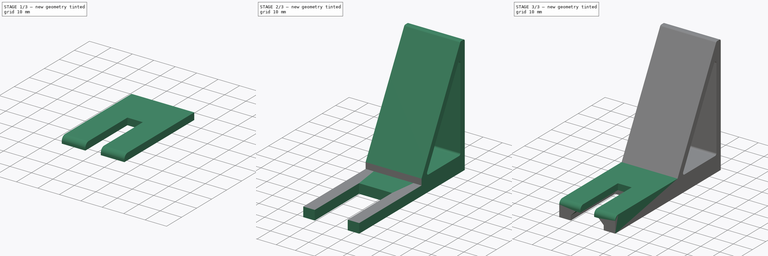
[diagram: build sequence overview — one tinted view per stage of 3, left to right]
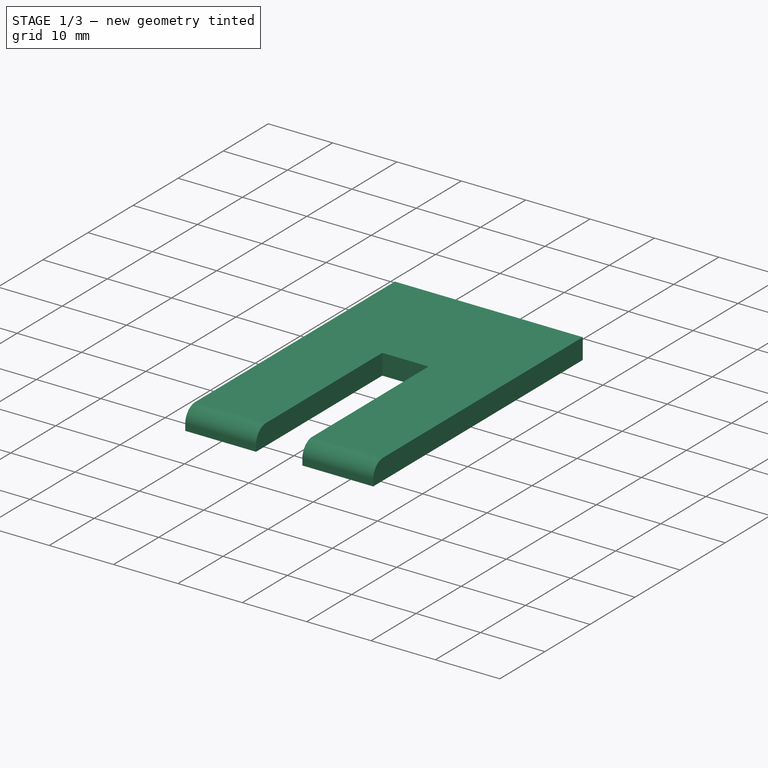
[diagram: stage 1 of 3 — iso view after this stage's code; geometry added in this stage tinted green]
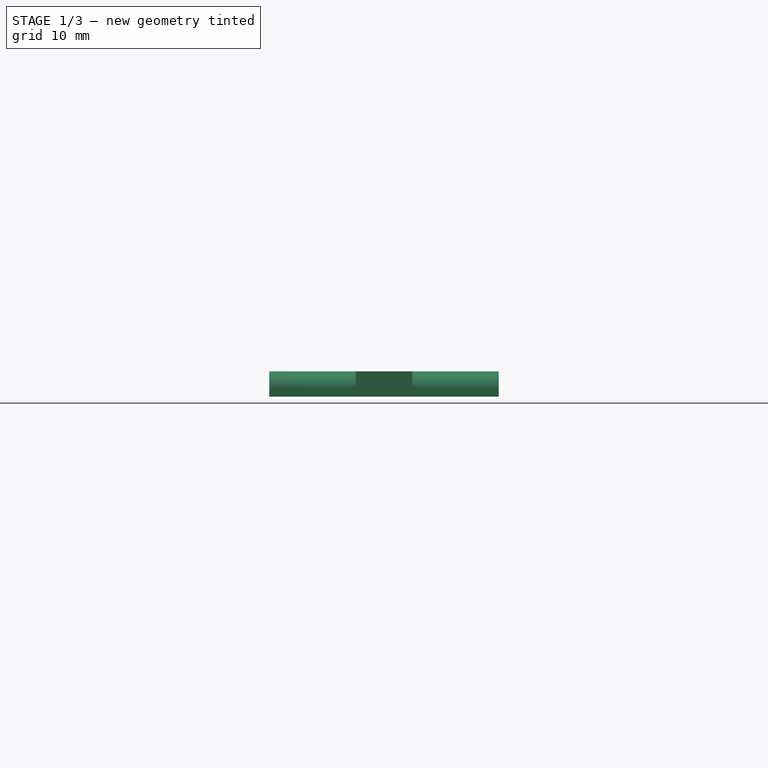
[diagram: stage 1 of 3 — front view after this stage's code; geometry added in this stage tinted green]
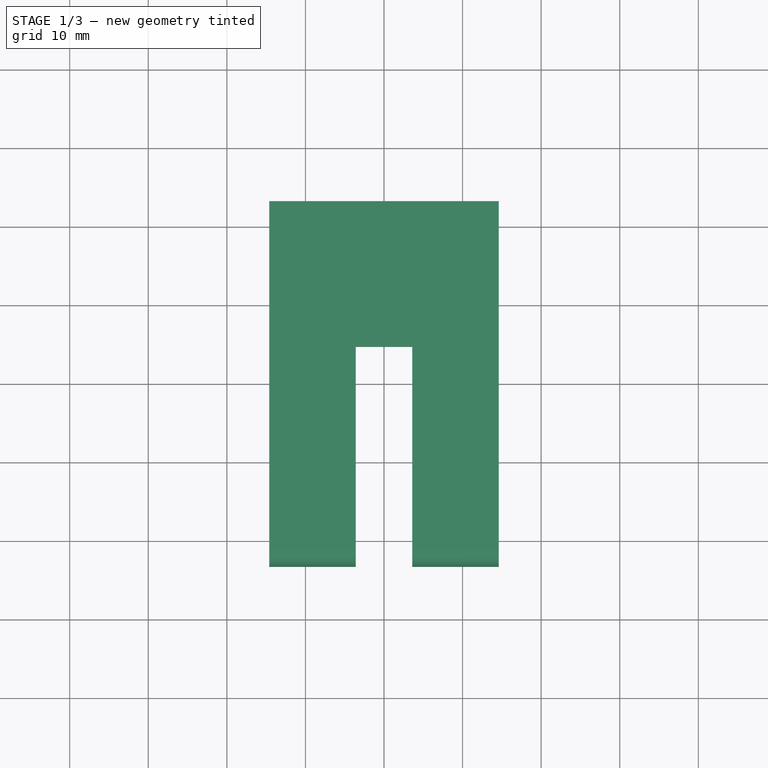
[diagram: stage 1 of 3 — top view after this stage's code; geometry added in this stage tinted green]
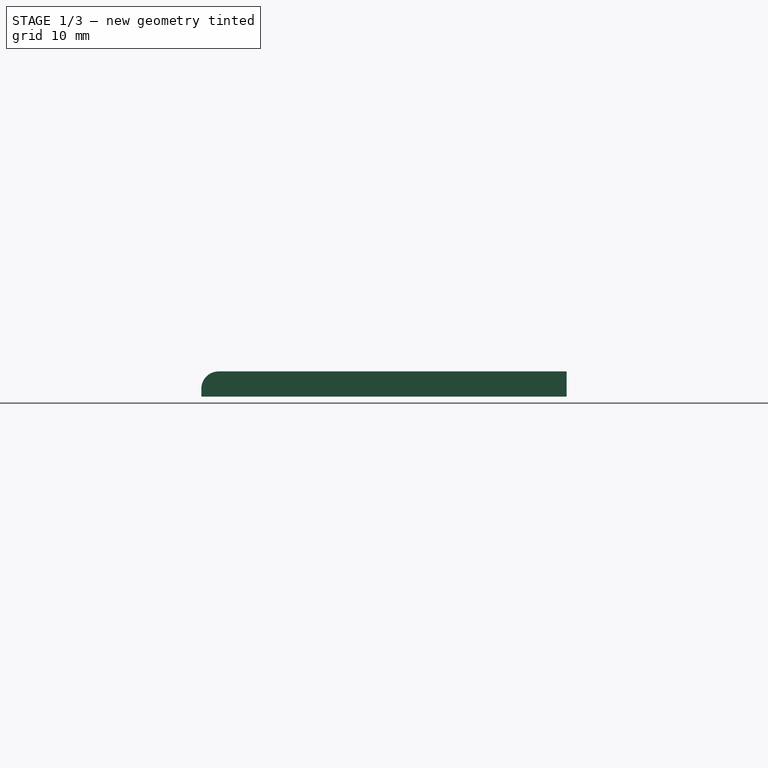
[diagram: stage 1 of 3 — right view after this stage's code; geometry added in this stage tinted green]
FCSTD DOCUMENT  (FreeCAD 1.1R40607 (Git))
Label: примерка для жерлицы
License: All rights reserved
LicenseURL: https://en.wikipedia.org/wiki/All_rights_reserved
objects: App::Point×3, Sketcher::SketchObject×3, PartDesign::Pad×3, PartDesign::Body×3, PartDesign::Fillet×2, PartDesign::SubShapeBinder×2, PartDesign::ShapeBinder×1, Part::MultiFuse×1, Part::Chamfer×1
note: 29 computed .brp shape members not serialized (recipe doc carries the construction recipe); baked Part::Feature solids carry a one-line shape summary decoded from their .brp

FEATURE [App::Point] Origin001  label="Начало координат"
  Role = Origin
FEATURE [Sketcher::SketchObject] Sketch
  ArcFitTolerance = 1e-06
  AttachmentSupport = -> [XY_Plane]
  ExternalTypes = [0]
  FullyConstrained = true
  MakeInternals = false
  MapMode = 5
  sketch-geometry (8):
    g0: LineSegment StartX=-14.6 StartY=23.25 StartZ=0 EndX=-14.6 EndY=-23.25 EndZ=0
    g1: LineSegment StartX=-14.6 StartY=-23.25 StartZ=0 EndX=-3.6 EndY=-23.25 EndZ=0
    g2: LineSegment StartX=14.6 StartY=-23.25 StartZ=0 EndX=14.6 EndY=23.25 EndZ=0
    g3: LineSegment StartX=14.6 StartY=23.25 StartZ=0 EndX=-14.6 EndY=23.25 EndZ=0
    g4: LineSegment StartX=3.6 StartY=-23.25 StartZ=0 EndX=3.6 EndY=4.75 EndZ=0
    g5: LineSegment StartX=3.6 StartY=4.75 StartZ=0 EndX=-3.6 EndY=4.75 EndZ=0
    g6: LineSegment StartX=-3.6 StartY=4.75 StartZ=0 EndX=-3.6 EndY=-23.25 EndZ=0
    g7: LineSegment StartX=3.6 StartY=-23.25 StartZ=0 EndX=14.6 EndY=-23.25 EndZ=0
  constraints (23):
    c: Coincident(g0,g1)
    c: Coincident(g7,g2)
    c: Coincident(g2,g3)
    c: Coincident(g3,g0)
    c: Vertical(g0)
    c: Vertical(g2)
    c: Horizontal(g3)
    c: Coincident(g4,g5)
    c: Coincident(g5,g6)
    c: Horizontal(g5)
    c: Vertical(g4)
    c: Vertical(g6)
    c: Coincident(g6,g1)
    c: Coincident(g4,g7)
    c: Horizontal(g7)
    c: Horizontal(g1)
    c: Equal(g1,g7)
    c: Horizontal(g4,g1)
    c: DistanceX(g5,g5) = 7.2
    c: DistanceY(g4,g4) = 28
    c: Symmetric(g0,g2,g-1)
    c: DistanceY(g4,g2) = 18.5
    c: DistanceX(g7,g7) = 11
FEATURE [PartDesign::Pad] Pad
  Direction = (0,0,1)
  Length = 3.2
  Length2 = 10
  Profile = -> Sketch
  ReferenceAxis = -> Sketch [N_Axis]
  Refine = true
  Suppressed = false
  Type = 0
FEATURE [PartDesign::Fillet] Fillet
  Base = -> Pad [Edge4,Edge16]
  BaseFeature = -> Pad
  Radius = 2.2
  Refine = true
  SupportTransform = false
  Suppressed = false
  UseAllEdges = false
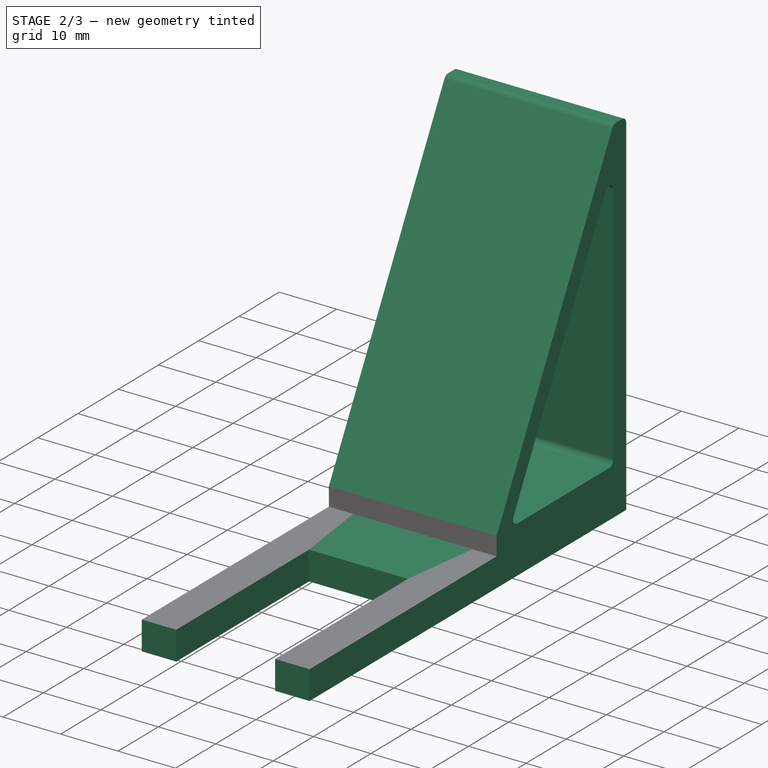
[diagram: stage 2 of 3 — iso view after this stage's code; geometry added in this stage tinted green]
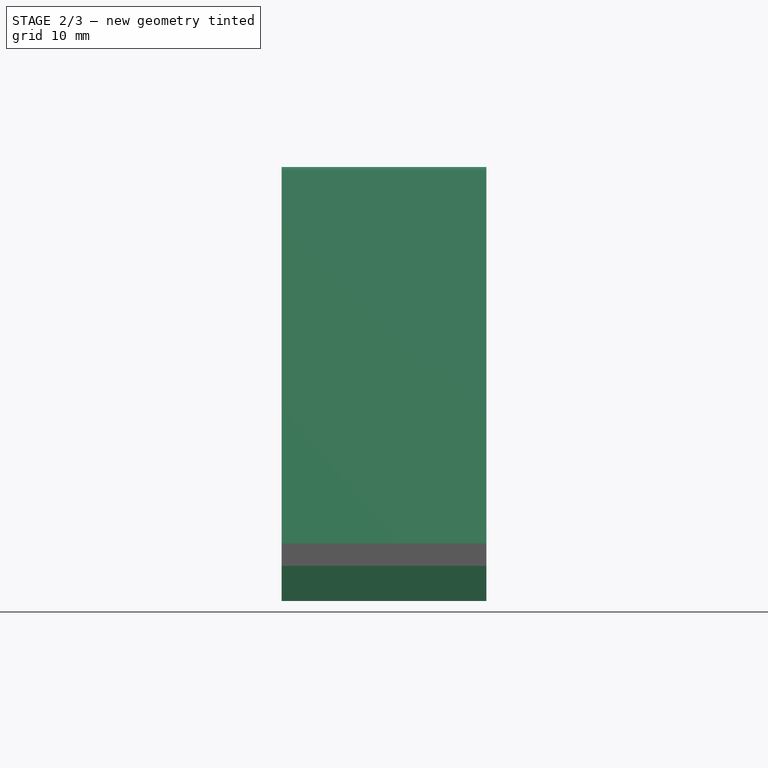
[diagram: stage 2 of 3 — front view after this stage's code; geometry added in this stage tinted green]
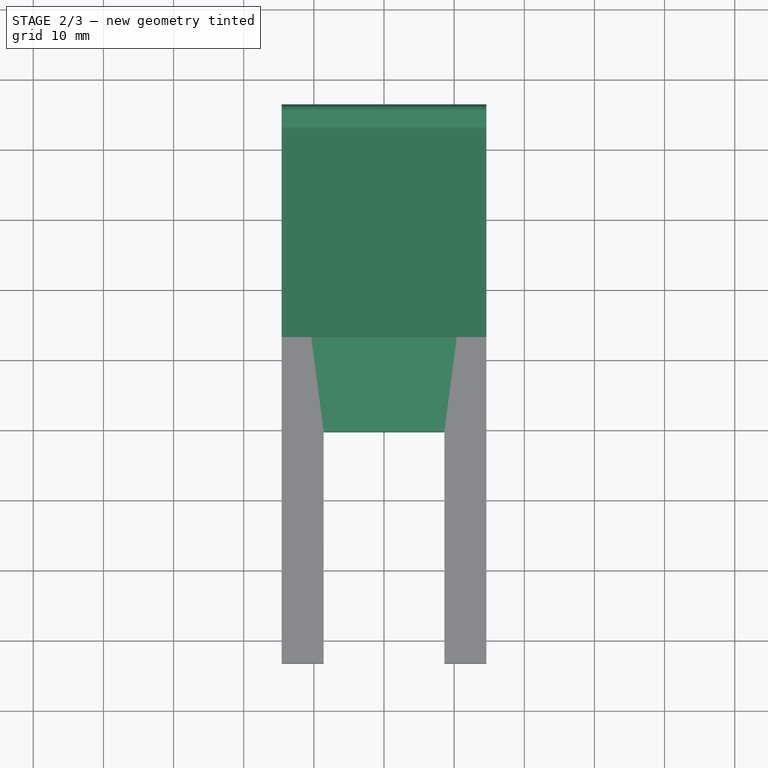
[diagram: stage 2 of 3 — top view after this stage's code; geometry added in this stage tinted green]
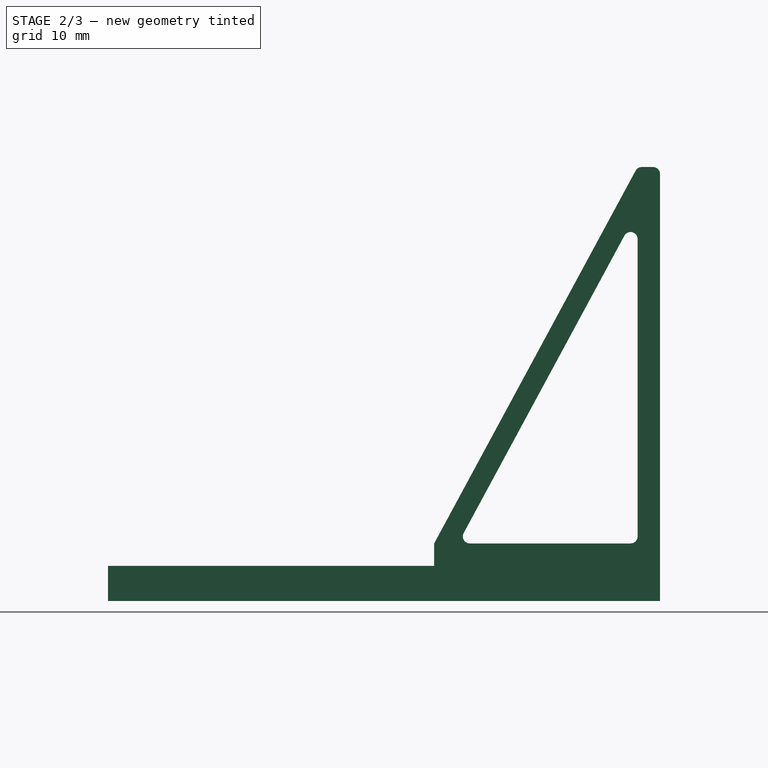
[diagram: stage 2 of 3 — right view after this stage's code; geometry added in this stage tinted green]
FEATURE [PartDesign::Body] Body  label="Тело"
  AllowCompound = false
  Group = -> [Sketch,Pad,Fillet]
  Origin = -> Origin
  Tip = -> Fillet
FEATURE [App::Point] Origin003  label="Начало координат002"
  Role = Origin
FEATURE [PartDesign::SubShapeBinder] Binder
  BindCopyOnChange = 0
  BindMode = 0
  ClaimChildren = false
  Context = -> Body001 [Binder.]
  Fuse = false
  MakeFace = true
  OffsetFill = false
  OffsetIntersection = false
  OffsetJoinType = 0
  OffsetOpenResult = false
  PartialLoad = false
  Refine = true
  Relative = true
  Support = -> [Body[Fillet.Face5]]
  _Version = 2
FEATURE [Sketcher::SketchObject] Sketch001
  ArcFitTolerance = 1e-06
  AttachmentSupport = -> [Binder]
  ExternalGeometry = -> [Binder]
  ExternalTypes = [0]
  FullyConstrained = true
  MakeInternals = false
  MapMode = 5
  Placement = pos=(14.6,0,0) rot=(0.57735,0.57735,0.57735;2.0944rad)
  sketch-geometry (7):
    g0: LineSegment StartX=26.6601 StartY=3.2 StartZ=0 EndX=52.25 EndY=3.2 EndZ=0
    g1: LineSegment StartX=52.25 StartY=3.2 StartZ=0 EndX=52.25 EndY=50.55 EndZ=0
    g2: LineSegment StartX=23.25 StartY=0 StartZ=0 EndX=55.45 EndY=0 EndZ=0
    g3: LineSegment StartX=55.45 StartY=0 StartZ=0 EndX=55.45 EndY=56.8598 EndZ=0
    g4: LineSegment StartX=52.25 StartY=56.8598 StartZ=0 EndX=55.45 EndY=56.8598 EndZ=0
    g5: LineSegment StartX=52.25 StartY=56.8598 StartZ=0 EndX=23.25 EndY=3.2 EndZ=0
    g6: LineSegment StartX=52.25 StartY=50.55 StartZ=0 EndX=26.6601 EndY=3.2 EndZ=0
  constraints (20):
    c: Coincident(g0,g1)
    c: DistanceY(g1,g1) = 47.35
    c: Coincident(g2,g-3)
    c: PointOnObject(g2,g-1)
    c: Coincident(g3,g2)
    c: Vertical(g3)
    c: Coincident(g4,g3)
    c: Horizontal(g4)
    c: Equal(g-3,g4)
    c: Parallel(g6,g5)
    c: Distance(g5,g6) = 3
    c: Horizontal(g0)
    c: Coincident(g6,g0)
    c: Vertical(g1)
    c: Coincident(g6,g1)
    c: Coincident(g-3,g5)
    c: Coincident(g4,g5)
    c: DistanceX(g5,g4) = 29
    c: Horizontal(g0,g5)
    c: Vertical(g1,g4)
FEATURE [PartDesign::SubShapeBinder] Binder001
  BindCopyOnChange = 0
  BindMode = 0
  ClaimChildren = false
  Context = -> Body001 [Binder001.]
  Fuse = false
  MakeFace = true
  OffsetFill = false
  OffsetIntersection = false
  OffsetJoinType = 0
  OffsetOpenResult = false
  PartialLoad = false
  Refine = true
  Relative = true
  Support = -> [Body[Fillet.Face9]]
  _Version = 2
FEATURE [PartDesign::Pad] Pad001
  Direction = (1,0,0)
  Length = 10
  Length2 = 10
  Profile = -> Sketch001
  ReferenceAxis = -> Sketch001 [N_Axis]
  Refine = true
  Suppressed = false
  Type = 3
  UpToFace = -> Binder001 [Face1]
FEATURE [PartDesign::Fillet] Fillet001
  Base = -> Pad001 [Edge22,Edge23,Edge24,Edge21,Edge12]
  BaseFeature = -> Pad001
  Radius = 1
  Refine = true
  SupportTransform = false
  Suppressed = false
  UseAllEdges = false
FEATURE [PartDesign::Body] Body001  label="Тело001"
  AllowCompound = false
  Group = -> [Binder,Sketch001,Binder001,Pad001,Fillet001]
  Origin = -> Origin002
  Tip = -> Fillet001
FEATURE [App::Point] Origin005  label="Начало координат004"
  Role = Origin
FEATURE [PartDesign::ShapeBinder] ReferenceFillet
  Support = -> [Fillet]
  Suppressed = false
  TraceSupport = false
FEATURE [Sketcher::SketchObject] Sketch002
  ArcFitTolerance = 1e-06
  AttachmentSupport = -> [ReferenceFillet]
  ExternalGeometry = -> [ReferenceFillet]
  ExternalTypes = [0,0,0,0,0,0,0,0]
  FullyConstrained = true
  MakeInternals = false
  MapMode = 5
  Placement = pos=(0,0,0) rot=(1,0,0;3.14159rad)
  sketch-geometry (8):
    g0: LineSegment StartX=14.6 StartY=-55.45 StartZ=0 EndX=14.6 EndY=23.25 EndZ=0
    g1: LineSegment StartX=8.6 StartY=-9.75 StartZ=0 EndX=-8.6 EndY=-9.75 EndZ=0
    g2: LineSegment StartX=-14.6 StartY=23.25 StartZ=0 EndX=-14.6 EndY=-55.45 EndZ=0
    g3: LineSegment StartX=-14.6 StartY=-55.45 StartZ=0 EndX=14.6 EndY=-55.45 EndZ=0
    g4: LineSegment StartX=-8.6 StartY=-9.75 StartZ=0 EndX=-8.6 EndY=23.25 EndZ=0
    g5: LineSegment StartX=-8.6 StartY=23.25 StartZ=0 EndX=-14.6 EndY=23.25 EndZ=0
    g6: LineSegment StartX=14.6 StartY=23.25 StartZ=0 EndX=8.6 EndY=23.25 EndZ=0
    g7: LineSegment StartX=8.6 StartY=23.25 StartZ=0 EndX=8.6 EndY=-9.75 EndZ=0
  constraints (22):
    c: Vertical(g2)
    c: Horizontal(g3)
    c: Coincident(g4,g5)
    c: Vertical(g4)
    c: Horizontal(g5)
    c: Coincident(g5,g-7)
    c: Coincident(g6,g7)
    c: Horizontal(g6)
    c: Vertical(g7)
    c: Coincident(g6,g-10)
    c: Coincident(g4,g1)
    c: Horizontal(g1)
    c: Coincident(g7,g1)
    c: Coincident(g2,g5)
    c: Coincident(g0,g6)
    c: Distance(g-4,g1) = 5
    c: Distance(g-4,g7) = 5
    c: Distance(g-3,g4) = 5
    c: Coincident(g3,g0)
    c: Coincident(g3,g2)
    c: Vertical(g0)
    c: DistanceY(g0,g-9) = 32.2
FEATURE [PartDesign::Pad] Pad002
  Direction = (0,0,-1)
  Length = 5
  Length2 = 10
  Profile = -> Sketch002
  ReferenceAxis = -> Sketch002 [N_Axis]
  Refine = true
  Suppressed = false
  Type = 0
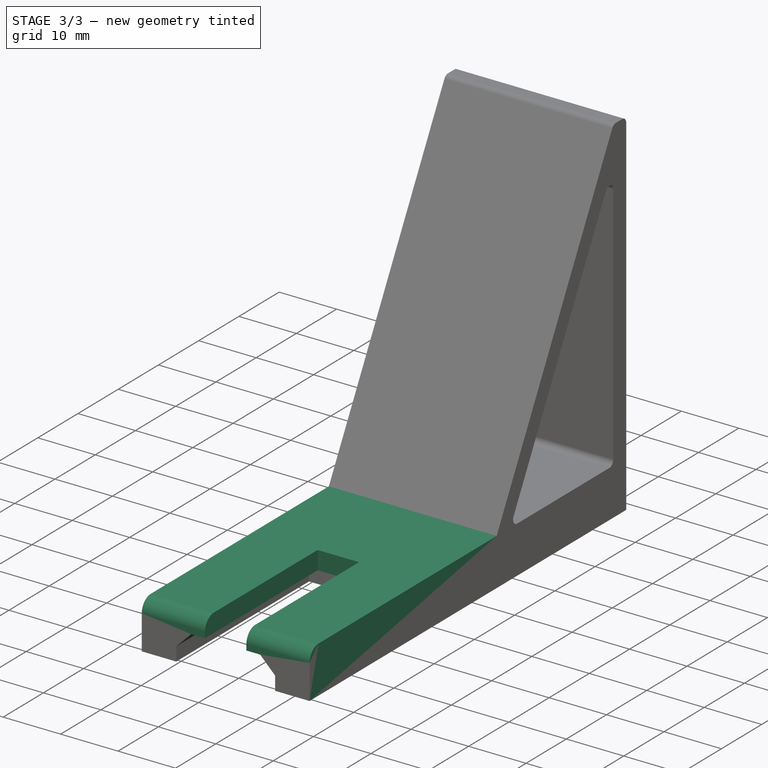
[diagram: stage 3 of 3 — iso view after this stage's code; geometry added in this stage tinted green]
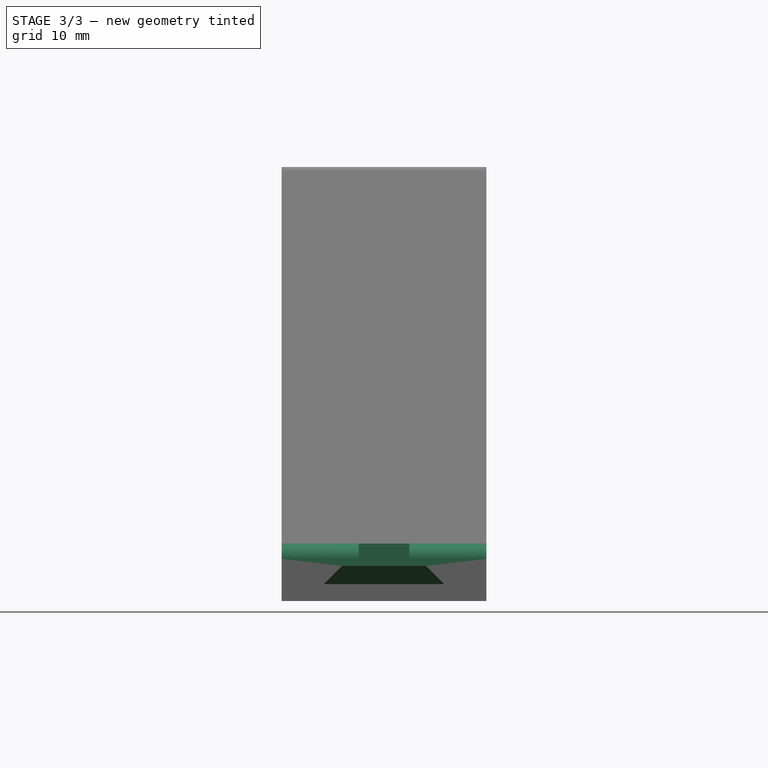
[diagram: stage 3 of 3 — front view after this stage's code; geometry added in this stage tinted green]
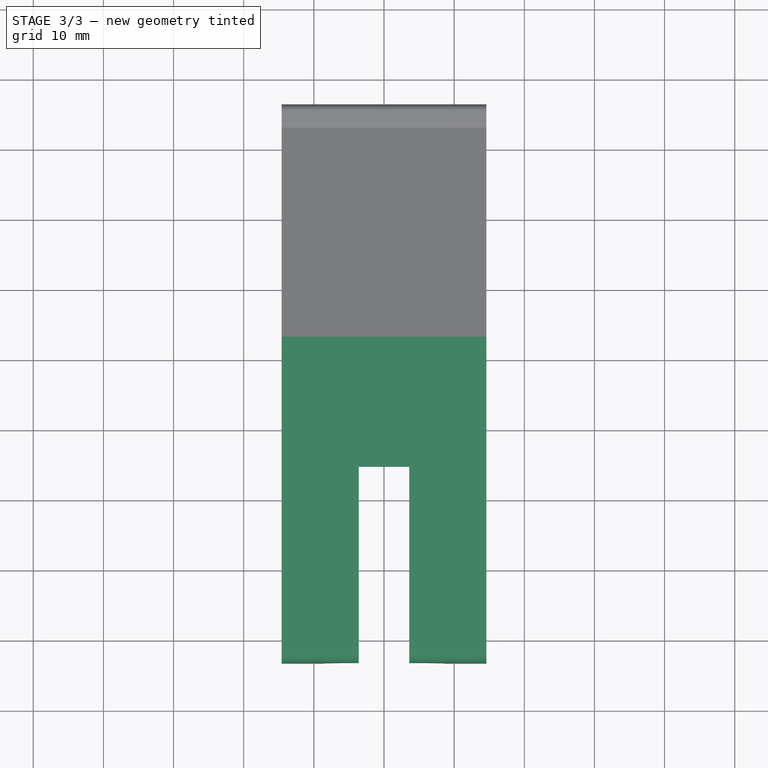
[diagram: stage 3 of 3 — top view after this stage's code; geometry added in this stage tinted green]
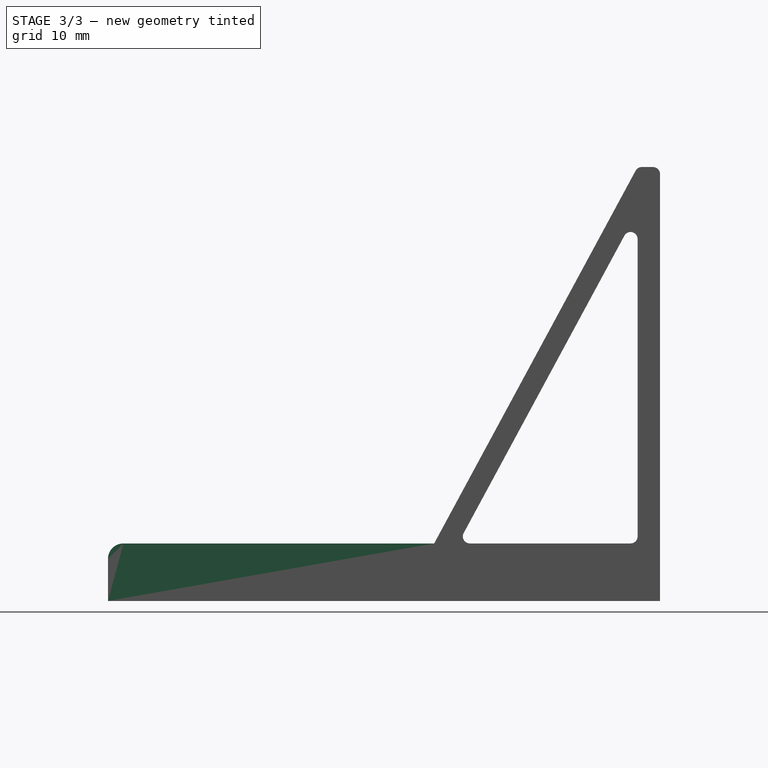
[diagram: stage 3 of 3 — right view after this stage's code; geometry added in this stage tinted green]
FEATURE [PartDesign::Body] Body002  label="Тело002"
  AllowCompound = false
  Group = -> [ReferenceFillet,Sketch002,Pad002]
  Origin = -> Origin004
  Tip = -> Pad002
FEATURE [Part::MultiFuse] Fusion
  Refine = true
  Shapes = -> [Body,Body002,Body001]
FEATURE [Part::Chamfer] Chamfer
  Base = -> Fusion
  EdgeLinks = -> Fusion [Edge22,Edge23,Edge24]
  Edges = 3 edges r=2.6: [Edge22,Edge23,Edge24]
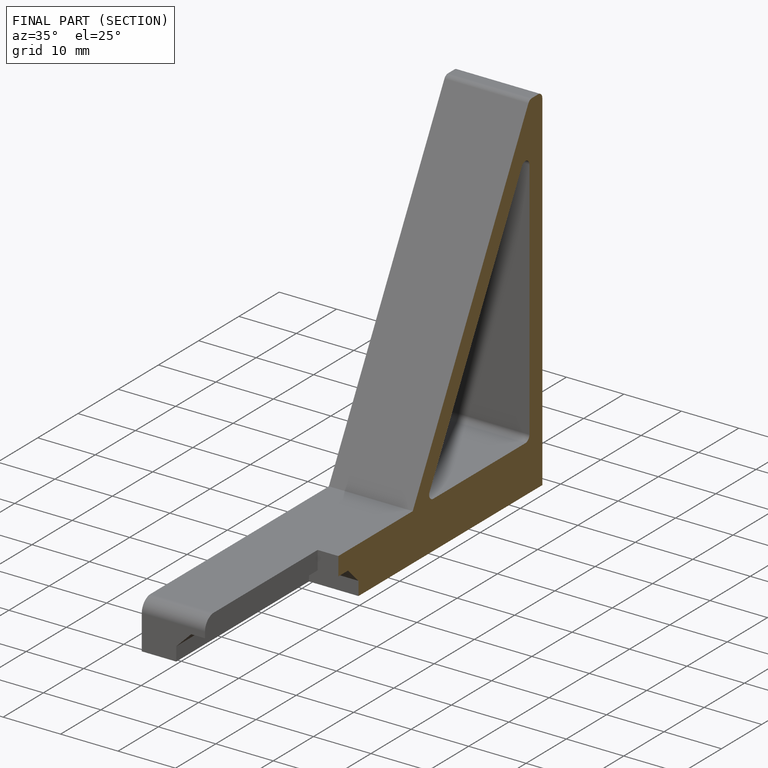
[diagram: finished part — half-section view (interior)]
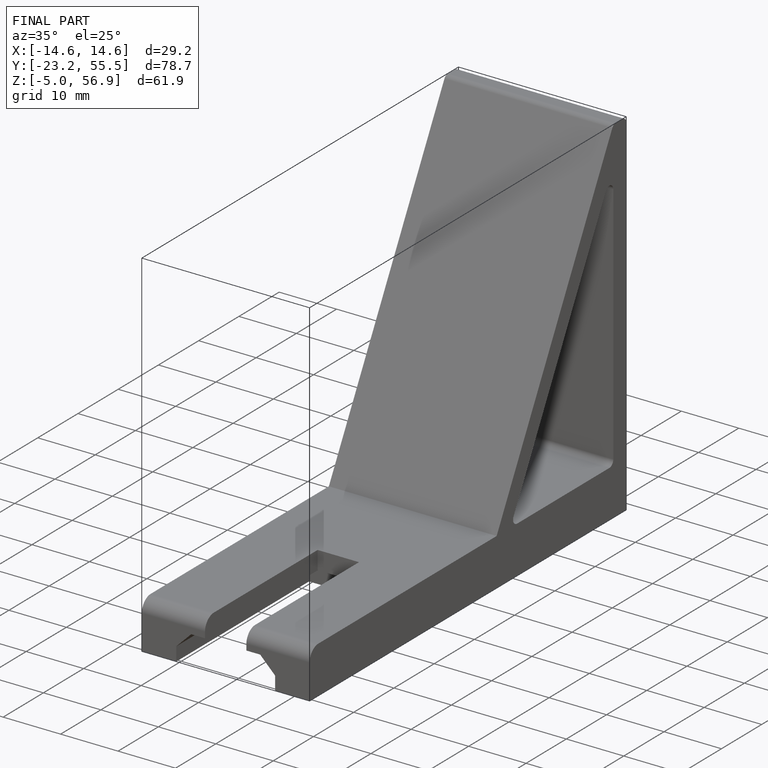
[diagram: finished part — iso view with bounding-box wireframe]
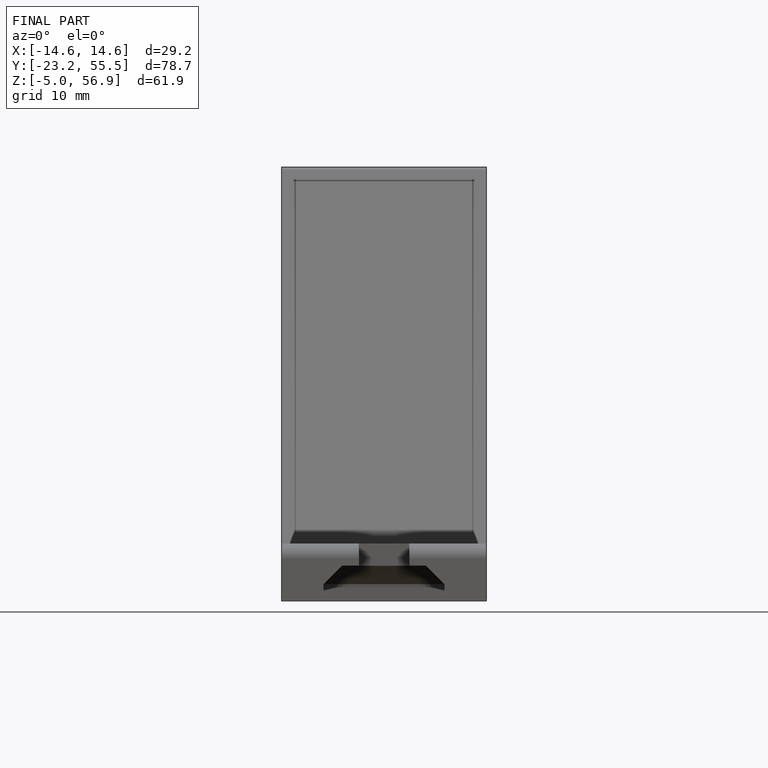
[diagram: finished part — front view with bounding-box wireframe]
